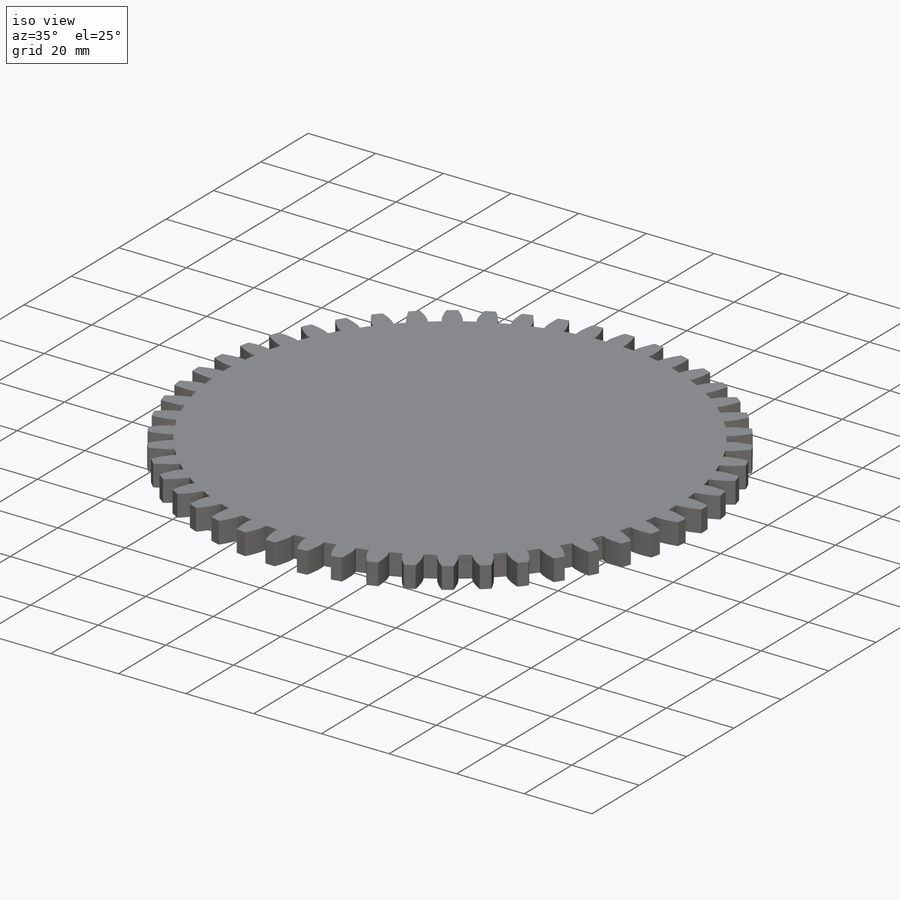
[diagram: iso view]
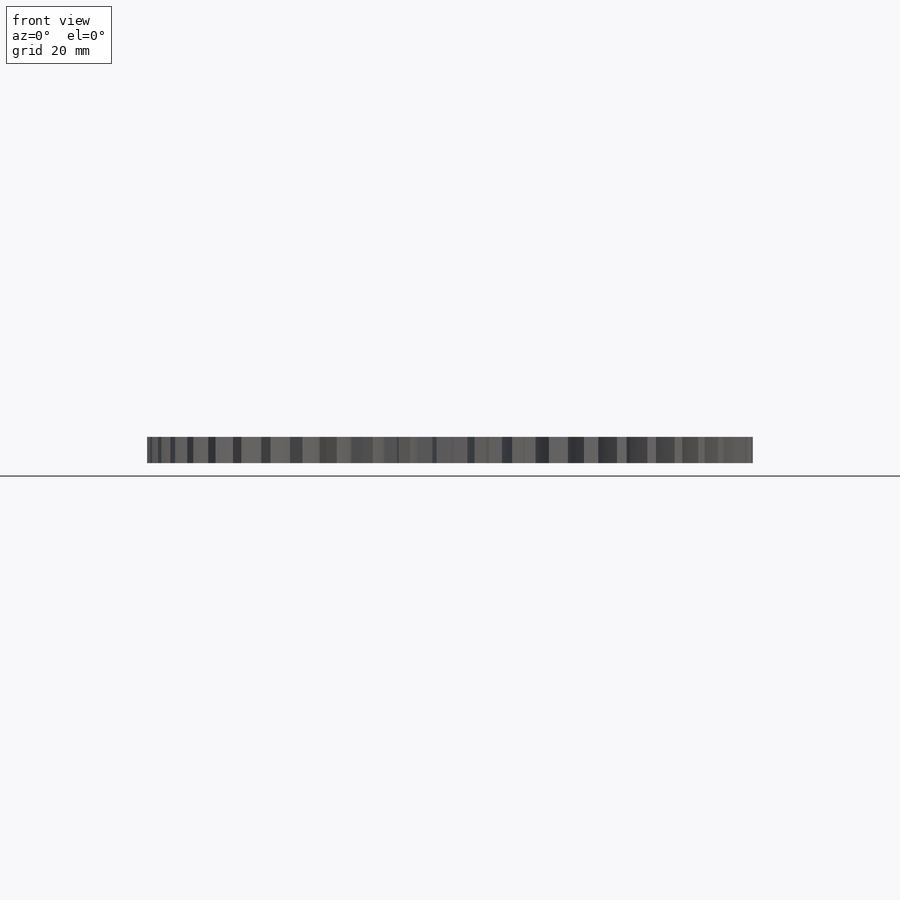
[diagram: front view]
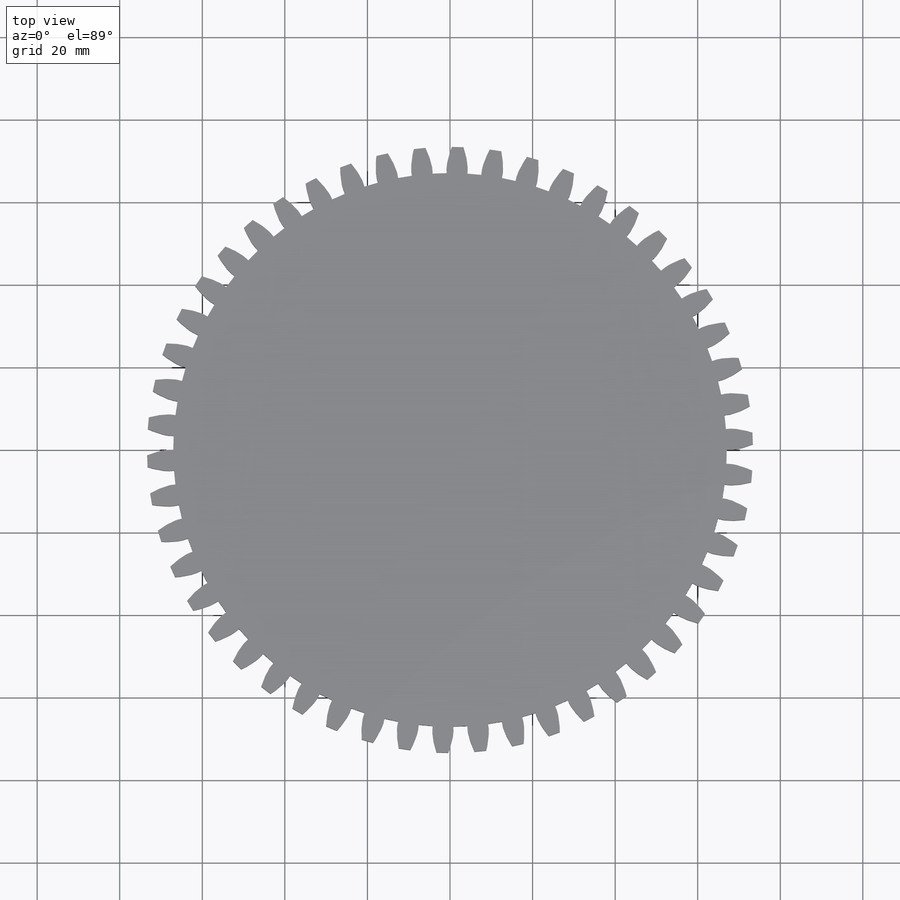
[diagram: top view]
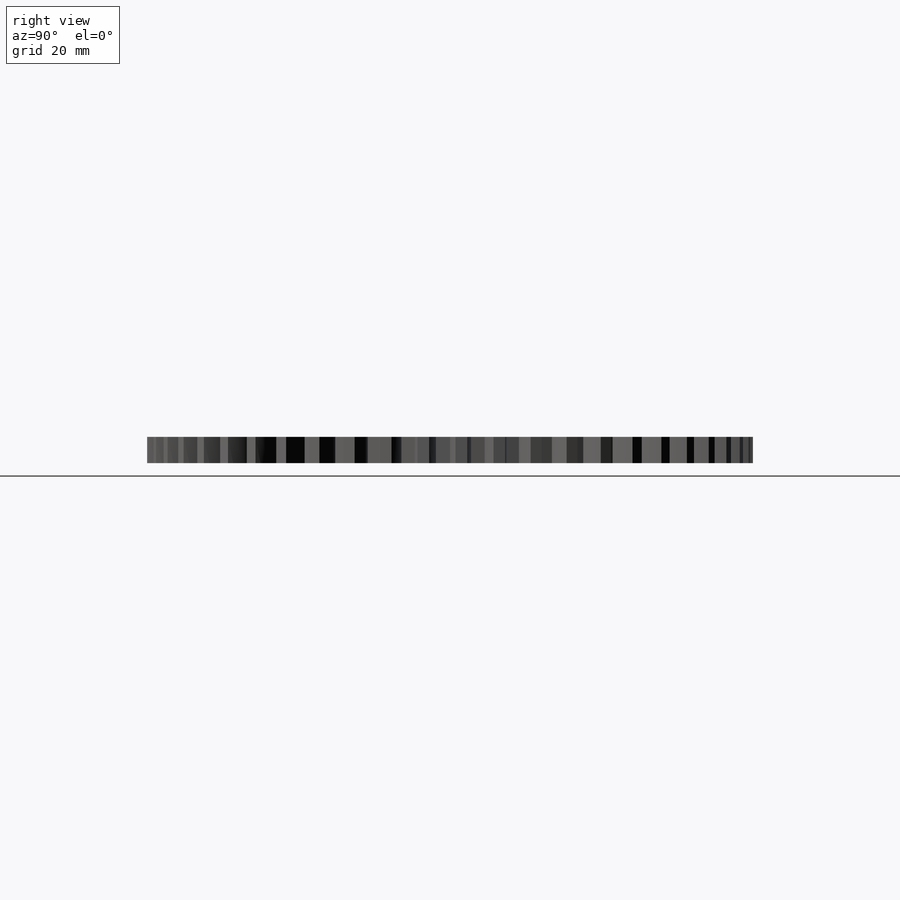
[diagram: right view]
SOLIDWORKS PART (.sldprt)
format: sldprt  version: not decoded by parser v0  size: 526,336 bytes
history: native  units: mm
features: sketch x3, material x1, extrude x1, cut_extrude x1, pattern_circular x1 (+13 scaffold rows collapsed)
feature tree (20):
  scaffold x13  (default folders/planes/origin — collapsed)
  material  "Material <not specified>"
  sketch  "Sketch1"  dims[c1.D1=914.4mm c1.D2=1016.0mm c1.D3=~50.000002mm c2.D1=~146.755556mm c2.D3=12.7mm]
  extrude  "Boss-Extrude1"  Depth=6.35mm
  sketch  "Sketch2"  dims[c1.D1=~141.111111mm c1.D2=~136.302867mm c1.D3=~134.055556mm c1.D4=107.442mm c2.D4=~1.447642deg c2.D5=~107.406867mm c3.D5=~4.146042deg c4.D5=~8.887968mm c5.D5=~1.447642deg]
  cut_extrude  "Cut-Extrude2"  [1 undecoded]
  pattern_circular  "CirPattern4"  Count=50 Angle=360deg
  sketch  "Sketch3"  dims[D1=152.4mm]
decode coverage: 5 of 6 modeling features carry decoded parameters
note: ~ marks probable driven/reference dimensions
note: 1 parameter value undecoded
note: suppression state not decoded; provenance and decode notes live in map.json
